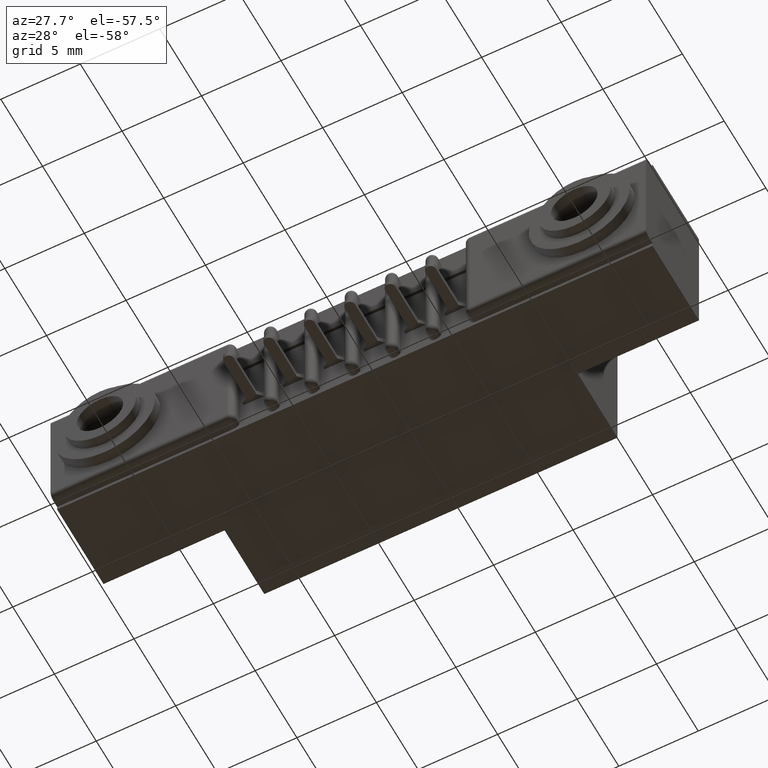
[diagram: clean part render]
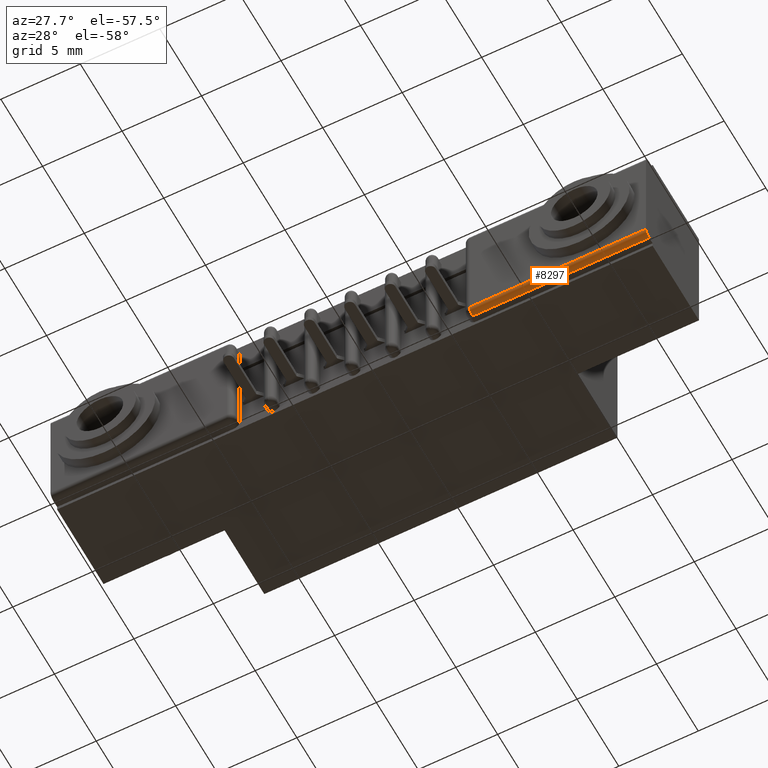
[diagram: same view with one face highlighted and labeled with its STEP entity id]
A machine part, auxiliary view. The second image highlights one B-rep face of the part: STEP entity #8297.
In plain terms, the highlighted cylindrical surface (edge-blend (fillet) strip) has radius 0.381 mm, axis along (1, 0, 0).
Its self-contained STEP definition (entity closure, byte-faithful):
#196 = EDGE_LOOP ( 'NONE', ( #9033, #808, #1032, #5095 ) ) ;
#474 = VERTEX_POINT ( 'NONE', #2726 ) ;
#588 = DIRECTION ( 'NONE',  ( 1.000000000000000000, -0.0000000000000000000, -0.0000000000000000000 ) ) ;
#719 = DIRECTION ( 'NONE',  ( 0.0000000000000000000, 0.0000000000000000000, 1.000000000000000000 ) ) ;
#796 = CARTESIAN_POINT ( 'NONE',  ( 1.474999999999999900, 0.01499999999999999900, -0.3049999999999999400 ) ) ;
#808 = ORIENTED_EDGE ( 'NONE', *, *, #1063, .T. ) ;
#845 = EDGE_CURVE ( 'NONE', #9011, #2108, #6879, .T. ) ;
#1032 = ORIENTED_EDGE ( 'NONE', *, *, #845, .F. ) ;
#1063 = EDGE_CURVE ( 'NONE', #1526, #2108, #1263, .T. ) ;
#1220 = CARTESIAN_POINT ( 'NONE',  ( 1.037750000000000400, 0.0000000000000000000, -0.3049999999999999400 ) ) ;
#1263 = CIRCLE ( 'NONE', #12909, 0.01499999999999997700 ) ;
#1488 = DIRECTION ( 'NONE',  ( 1.000000000000000000, 0.0000000000000000000, 0.0000000000000000000 ) ) ;
#1494 = CARTESIAN_POINT ( 'NONE',  ( 1.037750000000000400, 0.01499999999999996800, -0.3199999999999999500 ) ) ;
#1526 = VERTEX_POINT ( 'NONE', #1220 ) ;
#1749 = VECTOR ( 'NONE', #2456, 39.37007874015748100 ) ;
#2108 = VERTEX_POINT ( 'NONE', #1494 ) ;
#2456 = DIRECTION ( 'NONE',  ( 1.000000000000000000, -0.0000000000000000000, -0.0000000000000000000 ) ) ;
#2726 = CARTESIAN_POINT ( 'NONE',  ( 1.474999999999999900, 0.0000000000000000000, -0.3049999999999999400 ) ) ;
#2751 = CARTESIAN_POINT ( 'NONE',  ( 1.474999999999999900, 0.01499999999999996800, -0.3199999999999999500 ) ) ;
#2764 = DIRECTION ( 'NONE',  ( 0.0000000000000000000, 0.0000000000000000000, -1.000000000000000000 ) ) ;
#3862 = DIRECTION ( 'NONE',  ( 1.000000000000000000, 0.0000000000000000000, 0.0000000000000000000 ) ) ;
#4125 = LINE ( 'NONE', #8833, #1749 ) ;
#4494 = FACE_OUTER_BOUND ( 'NONE', #196, .T. ) ;
#4697 = VECTOR ( 'NONE', #12303, 39.37007874015748100 ) ;
#5026 = DIRECTION ( 'NONE',  ( 0.0000000000000000000, 0.0000000000000000000, -1.000000000000000000 ) ) ;
#5095 = ORIENTED_EDGE ( 'NONE', *, *, #6429, .F. ) ;
#5865 = CARTESIAN_POINT ( 'NONE',  ( 0.0000000000000000000, 0.01499999999999996800, -0.3199999999999999500 ) ) ;
#6106 = AXIS2_PLACEMENT_3D ( 'NONE', #10029, #3862, #2764 ) ;
#6429 = EDGE_CURVE ( 'NONE', #474, #9011, #6958, .T. ) ;
#6879 = LINE ( 'NONE', #5865, #4697 ) ;
#6958 = CIRCLE ( 'NONE', #7883, 0.01500000000000001200 ) ;
#7883 = AXIS2_PLACEMENT_3D ( 'NONE', #796, #588, #719 ) ;
#8111 = EDGE_CURVE ( 'NONE', #1526, #474, #4125, .T. ) ;
#8297 = ADVANCED_FACE ( 'NONE', ( #4494 ), #9658, .T. ) ;
#8833 = CARTESIAN_POINT ( 'NONE',  ( 1.474999999999999900, 0.0000000000000000000, -0.3049999999999999400 ) ) ;
#9011 = VERTEX_POINT ( 'NONE', #2751 ) ;
#9033 = ORIENTED_EDGE ( 'NONE', *, *, #8111, .F. ) ;
#9658 = CYLINDRICAL_SURFACE ( 'NONE', #6106, 0.01499999999999997700 ) ;
#10029 = CARTESIAN_POINT ( 'NONE',  ( 1.474999999999999900, 0.01499999999999999900, -0.3049999999999999400 ) ) ;
#11980 = CARTESIAN_POINT ( 'NONE',  ( 1.037750000000000400, 0.01499999999999999900, -0.3049999999999999400 ) ) ;
#12303 = DIRECTION ( 'NONE',  ( -1.000000000000000000, 0.0000000000000000000, 0.0000000000000000000 ) ) ;
#12909 = AXIS2_PLACEMENT_3D ( 'NONE', #11980, #1488, #5026 ) ;